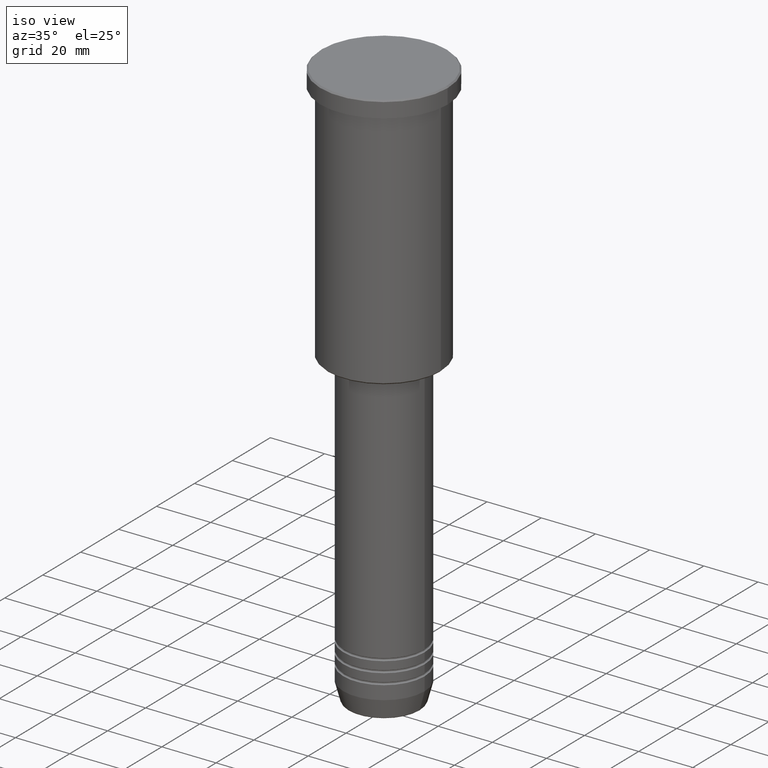
[diagram: clean part render]
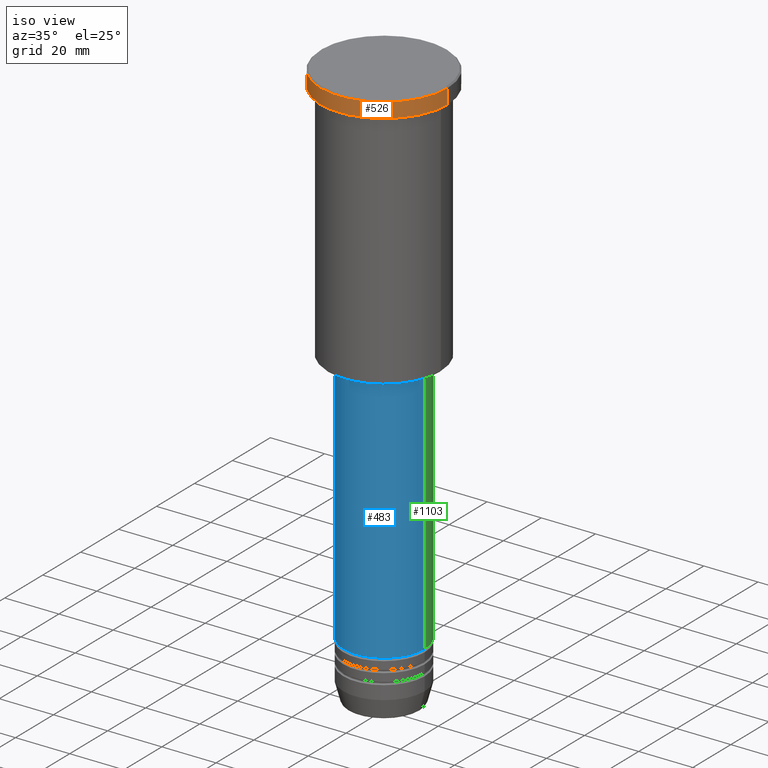
[diagram: same view with three faces highlighted in distinct colors, each labeled with its STEP entity id]
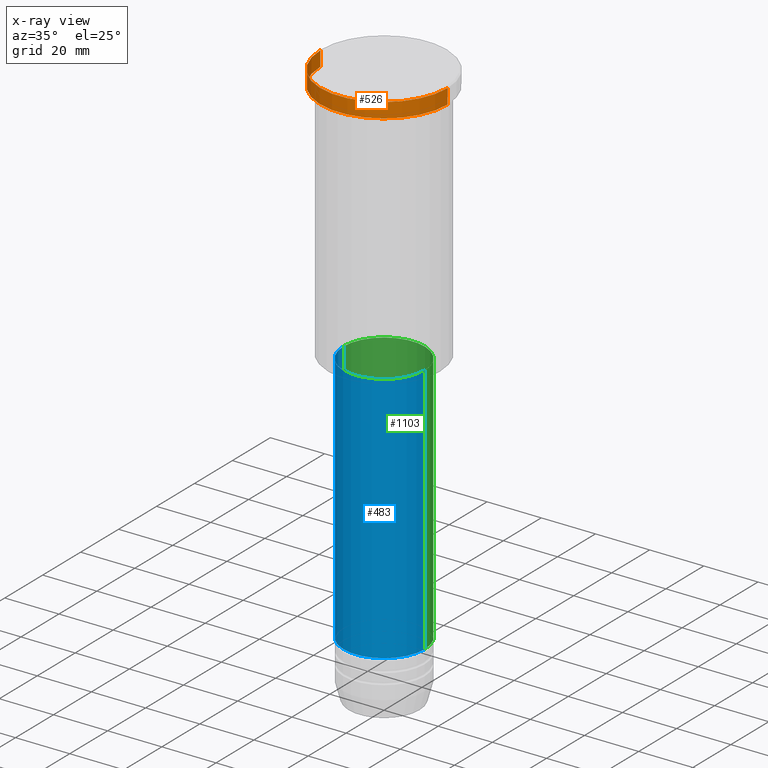
[diagram: x-ray of the same camera — body ghosted, the three highlighted faces saturated]
A machine part, iso view with three faces highlighted in distinct colors.
The next image is the same camera in x-ray (body ghosted, the three faces saturated) — at least one of them is partly hidden behind the body in this view.
Their STEP definitions:

[orange] entity #526 — the highlighted cylindrical surface (partial cylindrical patch) has radius 23.5 mm, axis along (-0, -0, 1).
#93 = CYLINDRICAL_SURFACE ( 'NONE', #705, 23.50000000000000000 ) ;
#124 = DIRECTION ( 'NONE',  ( 1.000000000000000000, 0.000000000000000000, 0.000000000000000000 ) ) ;
#148 = LINE ( 'NONE', #1060, #740 ) ;
#158 = EDGE_CURVE ( 'NONE', #732, #257, #186, .T. ) ;
#186 = CIRCLE ( 'NONE', #551, 23.50000000000000000 ) ;
#236 = ORIENTED_EDGE ( 'NONE', *, *, #444, .F. ) ;
#257 = VERTEX_POINT ( 'NONE', #686 ) ;
#273 = EDGE_CURVE ( 'NONE', #257, #515, #148, .T. ) ;
#281 = EDGE_LOOP ( 'NONE', ( #236, #646, #524, #979 ) ) ;
#379 = CIRCLE ( 'NONE', #630, 23.50000000000000000 ) ;
#439 = CARTESIAN_POINT ( 'NONE',  ( 0.000000000000000000, 0.000000000000000000, -0.5000000000000004441 ) ) ;
#444 = EDGE_CURVE ( 'NONE', #732, #1082, #1004, .T. ) ;
#455 = EDGE_CURVE ( 'NONE', #515, #1082, #379, .T. ) ;
#468 = FACE_OUTER_BOUND ( 'NONE', #281, .T. ) ;
#480 = CARTESIAN_POINT ( 'NONE',  ( 0.000000000000000000, 0.000000000000000000, 0.000000000000000000 ) ) ;
#508 = DIRECTION ( 'NONE',  ( -0.000000000000000000, -0.000000000000000000, 1.000000000000000000 ) ) ;
#515 = VERTEX_POINT ( 'NONE', #651 ) ;
#516 = CARTESIAN_POINT ( 'NONE',  ( -23.50000000000000000, 2.877919977996280320E-15, -5.999999999999993783 ) ) ;
#524 = ORIENTED_EDGE ( 'NONE', *, *, #273, .T. ) ;
#526 = ADVANCED_FACE ( 'NONE', ( #468 ), #93, .T. ) ;
#551 = AXIS2_PLACEMENT_3D ( 'NONE', #668, #1110, #124 ) ;
#555 = DIRECTION ( 'NONE',  ( -0.000000000000000000, -0.000000000000000000, 1.000000000000000000 ) ) ;
#630 = AXIS2_PLACEMENT_3D ( 'NONE', #439, #1079, #1086 ) ;
#646 = ORIENTED_EDGE ( 'NONE', *, *, #158, .T. ) ;
#651 = CARTESIAN_POINT ( 'NONE',  ( 23.50000000000000000, 0.000000000000000000, -0.5000000000000004441 ) ) ;
#668 = CARTESIAN_POINT ( 'NONE',  ( 0.000000000000000000, 0.000000000000000000, -5.999999999999993783 ) ) ;
#686 = CARTESIAN_POINT ( 'NONE',  ( 23.50000000000000000, 0.000000000000000000, -5.999999999999993783 ) ) ;
#705 = AXIS2_PLACEMENT_3D ( 'NONE', #480, #555, #1126 ) ;
#732 = VERTEX_POINT ( 'NONE', #516 ) ;
#740 = VECTOR ( 'NONE', #508, 1000.000000000000000 ) ;
#805 = CARTESIAN_POINT ( 'NONE',  ( -23.50000000000000000, 2.877919977996280320E-15, 0.000000000000000000 ) ) ;
#832 = VECTOR ( 'NONE', #1073, 1000.000000000000000 ) ;
#979 = ORIENTED_EDGE ( 'NONE', *, *, #455, .T. ) ;
#1004 = LINE ( 'NONE', #805, #832 ) ;
#1060 = CARTESIAN_POINT ( 'NONE',  ( 23.50000000000000000, 0.000000000000000000, 0.000000000000000000 ) ) ;
#1073 = DIRECTION ( 'NONE',  ( -0.000000000000000000, -0.000000000000000000, 1.000000000000000000 ) ) ;
#1079 = DIRECTION ( 'NONE',  ( 0.000000000000000000, 0.000000000000000000, -1.000000000000000000 ) ) ;
#1082 = VERTEX_POINT ( 'NONE', #1137 ) ;
#1086 = DIRECTION ( 'NONE',  ( 1.000000000000000000, 0.000000000000000000, 0.000000000000000000 ) ) ;
#1110 = DIRECTION ( 'NONE',  ( -0.000000000000000000, -0.000000000000000000, 1.000000000000000000 ) ) ;
#1126 = DIRECTION ( 'NONE',  ( 1.000000000000000000, 0.000000000000000000, 0.000000000000000000 ) ) ;
#1137 = CARTESIAN_POINT ( 'NONE',  ( -23.50000000000000000, 2.877919977996280320E-15, -0.5000000000000004441 ) ) ;

[blue] entity #483 — the highlighted cylindrical surface (partial cylindrical patch) has radius 15 mm, axis along (-0, -0, 1).
#26 = LINE ( 'NONE', #932, #681 ) ;
#105 = DIRECTION ( 'NONE',  ( -0.000000000000000000, -0.000000000000000000, 1.000000000000000000 ) ) ;
#131 = VERTEX_POINT ( 'NONE', #310 ) ;
#142 = CARTESIAN_POINT ( 'NONE',  ( 0.000000000000000000, 0.000000000000000000, -189.9999999999999147 ) ) ;
#199 = DIRECTION ( 'NONE',  ( 1.000000000000000000, 0.000000000000000000, 0.000000000000000000 ) ) ;
#214 = CARTESIAN_POINT ( 'NONE',  ( -15.00000000000000000, 1.836970198721029589E-15, 0.000000000000000000 ) ) ;
#250 = DIRECTION ( 'NONE',  ( 1.000000000000000000, 0.000000000000000000, 0.000000000000000000 ) ) ;
#291 = ORIENTED_EDGE ( 'NONE', *, *, #488, .T. ) ;
#302 = DIRECTION ( 'NONE',  ( -0.000000000000000000, -0.000000000000000000, 1.000000000000000000 ) ) ;
#310 = CARTESIAN_POINT ( 'NONE',  ( 15.00000000000000000, 0.000000000000000000, -97.00000000000005684 ) ) ;
#328 = VERTEX_POINT ( 'NONE', #972 ) ;
#336 = VERTEX_POINT ( 'NONE', #858 ) ;
#343 = VECTOR ( 'NONE', #930, 1000.000000000000000 ) ;
#408 = CARTESIAN_POINT ( 'NONE',  ( -15.00000000000000000, 1.836970198721029589E-15, -189.9999999999999147 ) ) ;
#483 = ADVANCED_FACE ( 'NONE', ( #1117 ), #572, .T. ) ;
#488 = EDGE_CURVE ( 'NONE', #328, #131, #26, .T. ) ;
#569 = AXIS2_PLACEMENT_3D ( 'NONE', #919, #302, #758 ) ;
#572 = CYLINDRICAL_SURFACE ( 'NONE', #569, 15.00000000000000000 ) ;
#591 = ORIENTED_EDGE ( 'NONE', *, *, #938, .F. ) ;
#601 = ORIENTED_EDGE ( 'NONE', *, *, #886, .F. ) ;
#610 = AXIS2_PLACEMENT_3D ( 'NONE', #890, #638, #199 ) ;
#638 = DIRECTION ( 'NONE',  ( -0.000000000000000000, -0.000000000000000000, 1.000000000000000000 ) ) ;
#681 = VECTOR ( 'NONE', #105, 1000.000000000000000 ) ;
#758 = DIRECTION ( 'NONE',  ( 1.000000000000000000, 0.000000000000000000, 0.000000000000000000 ) ) ;
#770 = CIRCLE ( 'NONE', #610, 15.00000000000000000 ) ;
#794 = AXIS2_PLACEMENT_3D ( 'NONE', #142, #865, #250 ) ;
#858 = CARTESIAN_POINT ( 'NONE',  ( -15.00000000000000000, 1.836970198721029589E-15, -97.00000000000005684 ) ) ;
#865 = DIRECTION ( 'NONE',  ( -0.000000000000000000, -0.000000000000000000, 1.000000000000000000 ) ) ;
#886 = EDGE_CURVE ( 'NONE', #336, #131, #770, .T. ) ;
#890 = CARTESIAN_POINT ( 'NONE',  ( 0.000000000000000000, 0.000000000000000000, -97.00000000000005684 ) ) ;
#919 = CARTESIAN_POINT ( 'NONE',  ( 0.000000000000000000, 0.000000000000000000, 0.000000000000000000 ) ) ;
#930 = DIRECTION ( 'NONE',  ( -0.000000000000000000, -0.000000000000000000, 1.000000000000000000 ) ) ;
#932 = CARTESIAN_POINT ( 'NONE',  ( 15.00000000000000000, 0.000000000000000000, 0.000000000000000000 ) ) ;
#938 = EDGE_CURVE ( 'NONE', #1156, #336, #1128, .T. ) ;
#972 = CARTESIAN_POINT ( 'NONE',  ( 15.00000000000000000, 0.000000000000000000, -189.9999999999999147 ) ) ;
#1043 = EDGE_LOOP ( 'NONE', ( #591, #1070, #291, #601 ) ) ;
#1070 = ORIENTED_EDGE ( 'NONE', *, *, #1159, .T. ) ;
#1117 = FACE_OUTER_BOUND ( 'NONE', #1043, .T. ) ;
#1128 = LINE ( 'NONE', #214, #343 ) ;
#1156 = VERTEX_POINT ( 'NONE', #408 ) ;
#1158 = CIRCLE ( 'NONE', #794, 15.00000000000000000 ) ;
#1159 = EDGE_CURVE ( 'NONE', #1156, #328, #1158, .T. ) ;

[green] entity #1103 — the highlighted cylindrical surface (partial cylindrical patch) has radius 15 mm, axis along (-0, -0, 1).
#26 = LINE ( 'NONE', #932, #681 ) ;
#105 = DIRECTION ( 'NONE',  ( -0.000000000000000000, -0.000000000000000000, 1.000000000000000000 ) ) ;
#131 = VERTEX_POINT ( 'NONE', #310 ) ;
#157 = CARTESIAN_POINT ( 'NONE',  ( 0.000000000000000000, 0.000000000000000000, 0.000000000000000000 ) ) ;
#211 = AXIS2_PLACEMENT_3D ( 'NONE', #157, #534, #602 ) ;
#214 = CARTESIAN_POINT ( 'NONE',  ( -15.00000000000000000, 1.836970198721029589E-15, 0.000000000000000000 ) ) ;
#310 = CARTESIAN_POINT ( 'NONE',  ( 15.00000000000000000, 0.000000000000000000, -97.00000000000005684 ) ) ;
#317 = DIRECTION ( 'NONE',  ( 1.000000000000000000, 0.000000000000000000, 0.000000000000000000 ) ) ;
#328 = VERTEX_POINT ( 'NONE', #972 ) ;
#336 = VERTEX_POINT ( 'NONE', #858 ) ;
#343 = VECTOR ( 'NONE', #930, 1000.000000000000000 ) ;
#344 = CIRCLE ( 'NONE', #708, 15.00000000000000000 ) ;
#408 = CARTESIAN_POINT ( 'NONE',  ( -15.00000000000000000, 1.836970198721029589E-15, -189.9999999999999147 ) ) ;
#426 = CYLINDRICAL_SURFACE ( 'NONE', #211, 15.00000000000000000 ) ;
#447 = EDGE_LOOP ( 'NONE', ( #1153, #873, #820, #690 ) ) ;
#488 = EDGE_CURVE ( 'NONE', #328, #131, #26, .T. ) ;
#525 = FACE_OUTER_BOUND ( 'NONE', #447, .T. ) ;
#534 = DIRECTION ( 'NONE',  ( -0.000000000000000000, -0.000000000000000000, 1.000000000000000000 ) ) ;
#567 = CARTESIAN_POINT ( 'NONE',  ( 0.000000000000000000, 0.000000000000000000, -97.00000000000005684 ) ) ;
#602 = DIRECTION ( 'NONE',  ( 1.000000000000000000, 0.000000000000000000, 0.000000000000000000 ) ) ;
#681 = VECTOR ( 'NONE', #105, 1000.000000000000000 ) ;
#690 = ORIENTED_EDGE ( 'NONE', *, *, #488, .F. ) ;
#708 = AXIS2_PLACEMENT_3D ( 'NONE', #1076, #779, #1057 ) ;
#757 = CIRCLE ( 'NONE', #1046, 15.00000000000000000 ) ;
#779 = DIRECTION ( 'NONE',  ( -0.000000000000000000, -0.000000000000000000, 1.000000000000000000 ) ) ;
#820 = ORIENTED_EDGE ( 'NONE', *, *, #916, .F. ) ;
#847 = DIRECTION ( 'NONE',  ( -0.000000000000000000, -0.000000000000000000, 1.000000000000000000 ) ) ;
#858 = CARTESIAN_POINT ( 'NONE',  ( -15.00000000000000000, 1.836970198721029589E-15, -97.00000000000005684 ) ) ;
#873 = ORIENTED_EDGE ( 'NONE', *, *, #938, .T. ) ;
#916 = EDGE_CURVE ( 'NONE', #131, #336, #757, .T. ) ;
#930 = DIRECTION ( 'NONE',  ( -0.000000000000000000, -0.000000000000000000, 1.000000000000000000 ) ) ;
#932 = CARTESIAN_POINT ( 'NONE',  ( 15.00000000000000000, 0.000000000000000000, 0.000000000000000000 ) ) ;
#938 = EDGE_CURVE ( 'NONE', #1156, #336, #1128, .T. ) ;
#972 = CARTESIAN_POINT ( 'NONE',  ( 15.00000000000000000, 0.000000000000000000, -189.9999999999999147 ) ) ;
#1046 = AXIS2_PLACEMENT_3D ( 'NONE', #567, #847, #317 ) ;
#1057 = DIRECTION ( 'NONE',  ( 1.000000000000000000, 0.000000000000000000, 0.000000000000000000 ) ) ;
#1076 = CARTESIAN_POINT ( 'NONE',  ( 0.000000000000000000, 0.000000000000000000, -189.9999999999999147 ) ) ;
#1089 = EDGE_CURVE ( 'NONE', #328, #1156, #344, .T. ) ;
#1103 = ADVANCED_FACE ( 'NONE', ( #525 ), #426, .T. ) ;
#1128 = LINE ( 'NONE', #214, #343 ) ;
#1153 = ORIENTED_EDGE ( 'NONE', *, *, #1089, .T. ) ;
#1156 = VERTEX_POINT ( 'NONE', #408 ) ;